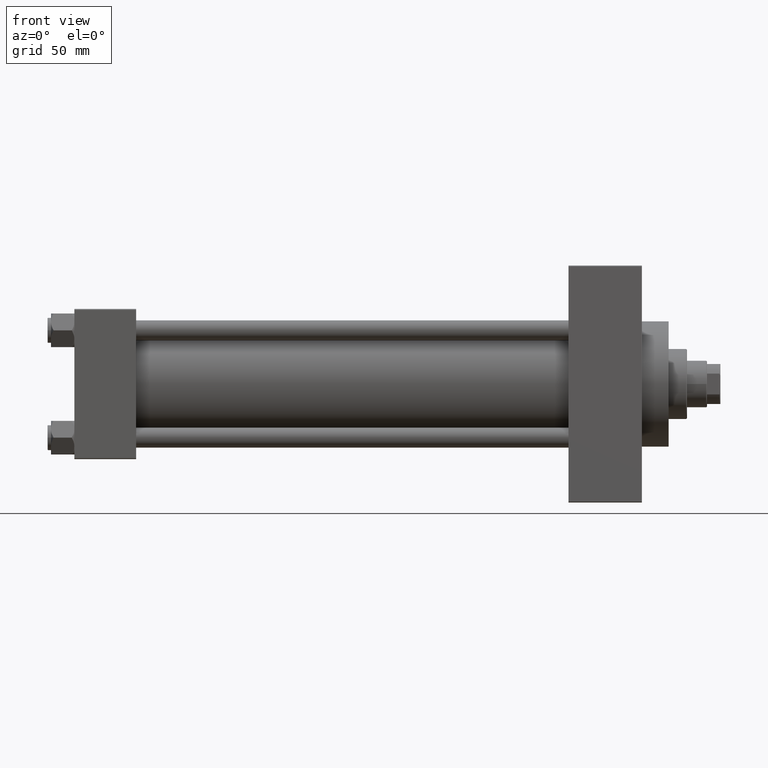
[diagram: clean part render]
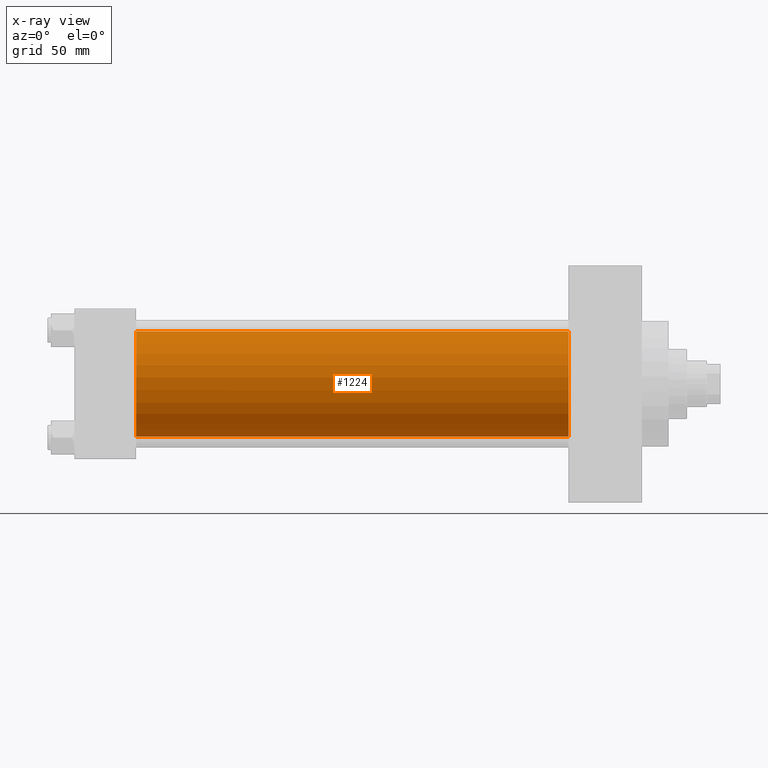
[diagram: x-ray — body ghosted, one internal face saturated and labeled with its STEP entity id]
A machine part, front view, then the same camera in x-ray: the body is ghosted and one INTERNAL B-rep face — a face not visible from any outside direction — is saturated and labeled: STEP entity #1224.
In plain terms, the highlighted cylindrical surface (partial cylindrical patch) has radius 31.5 mm, axis along (-1, -0, -0).
Its self-contained STEP definition (entity closure, byte-faithful):
#294 = AXIS2_PLACEMENT_3D ( 'NONE', #41791, #36648, #13962 ) ;
#1224 = ADVANCED_FACE ( 'NONE', ( #12825 ), #28036, .F. ) ;
#2102 = DIRECTION ( 'NONE',  ( -1.000000000000000000, -0.000000000000000000, -0.000000000000000000 ) ) ;
#2806 = VERTEX_POINT ( 'NONE', #23176 ) ;
#3298 = DIRECTION ( 'NONE',  ( 0.000000000000000000, 0.000000000000000000, -1.000000000000000000 ) ) ;
#3495 = CIRCLE ( 'NONE', #294, 31.50000000000000000 ) ;
#4094 = VECTOR ( 'NONE', #30451, 1000.000000000000000 ) ;
#4458 = VERTEX_POINT ( 'NONE', #33556 ) ;
#4682 = CARTESIAN_POINT ( 'NONE',  ( 296.0000000000000000, 1.255552203348951850E-15, -31.50000000000000000 ) ) ;
#5037 = ORIENTED_EDGE ( 'NONE', *, *, #22721, .F. ) ;
#7053 = CARTESIAN_POINT ( 'NONE',  ( 37.00000000000000000, -2.602085213965210642E-15, 0.000000000000000000 ) ) ;
#8126 = EDGE_LOOP ( 'NONE', ( #36268, #12638, #38533, #5037 ) ) ;
#10326 = CARTESIAN_POINT ( 'NONE',  ( 296.0000000000000000, -2.602085213965210642E-15, 0.000000000000000000 ) ) ;
#11720 = VERTEX_POINT ( 'NONE', #41477 ) ;
#12638 = ORIENTED_EDGE ( 'NONE', *, *, #25995, .T. ) ;
#12825 = FACE_OUTER_BOUND ( 'NONE', #8126, .T. ) ;
#13962 = DIRECTION ( 'NONE',  ( 0.000000000000000000, 0.000000000000000000, -1.000000000000000000 ) ) ;
#14373 = DIRECTION ( 'NONE',  ( -1.000000000000000000, -0.000000000000000000, -0.000000000000000000 ) ) ;
#14566 = VECTOR ( 'NONE', #14373, 1000.000000000000000 ) ;
#15230 = CARTESIAN_POINT ( 'NONE',  ( 296.0000000000000000, -2.602085213965210642E-15, 31.50000000000000000 ) ) ;
#17023 = CIRCLE ( 'NONE', #23392, 31.50000000000000000 ) ;
#22721 = EDGE_CURVE ( 'NONE', #4458, #11720, #30942, .T. ) ;
#23176 = CARTESIAN_POINT ( 'NONE',  ( 37.00000000000000000, 1.255552203348951850E-15, -31.50000000000000000 ) ) ;
#23392 = AXIS2_PLACEMENT_3D ( 'NONE', #7053, #37454, #3298 ) ;
#25995 = EDGE_CURVE ( 'NONE', #30401, #2806, #37086, .T. ) ;
#28036 = CYLINDRICAL_SURFACE ( 'NONE', #30339, 31.50000000000000000 ) ;
#30339 = AXIS2_PLACEMENT_3D ( 'NONE', #10326, #2102, #47963 ) ;
#30401 = VERTEX_POINT ( 'NONE', #4682 ) ;
#30451 = DIRECTION ( 'NONE',  ( -1.000000000000000000, -0.000000000000000000, -0.000000000000000000 ) ) ;
#30942 = LINE ( 'NONE', #15230, #4094 ) ;
#33556 = CARTESIAN_POINT ( 'NONE',  ( 296.0000000000000000, -2.602085213965210642E-15, 31.50000000000000000 ) ) ;
#36268 = ORIENTED_EDGE ( 'NONE', *, *, #47022, .T. ) ;
#36648 = DIRECTION ( 'NONE',  ( 1.000000000000000000, 0.000000000000000000, 0.000000000000000000 ) ) ;
#37086 = LINE ( 'NONE', #48287, #14566 ) ;
#37454 = DIRECTION ( 'NONE',  ( 1.000000000000000000, 0.000000000000000000, 0.000000000000000000 ) ) ;
#38533 = ORIENTED_EDGE ( 'NONE', *, *, #47802, .F. ) ;
#41477 = CARTESIAN_POINT ( 'NONE',  ( 37.00000000000000000, -2.602085213965210642E-15, 31.50000000000000000 ) ) ;
#41791 = CARTESIAN_POINT ( 'NONE',  ( 296.0000000000000000, -2.602085213965210642E-15, 0.000000000000000000 ) ) ;
#47022 = EDGE_CURVE ( 'NONE', #4458, #30401, #3495, .T. ) ;
#47802 = EDGE_CURVE ( 'NONE', #11720, #2806, #17023, .T. ) ;
#47963 = DIRECTION ( 'NONE',  ( 0.000000000000000000, 0.000000000000000000, 1.000000000000000000 ) ) ;
#48287 = CARTESIAN_POINT ( 'NONE',  ( 296.0000000000000000, 1.255552203348951850E-15, -31.50000000000000000 ) ) ;